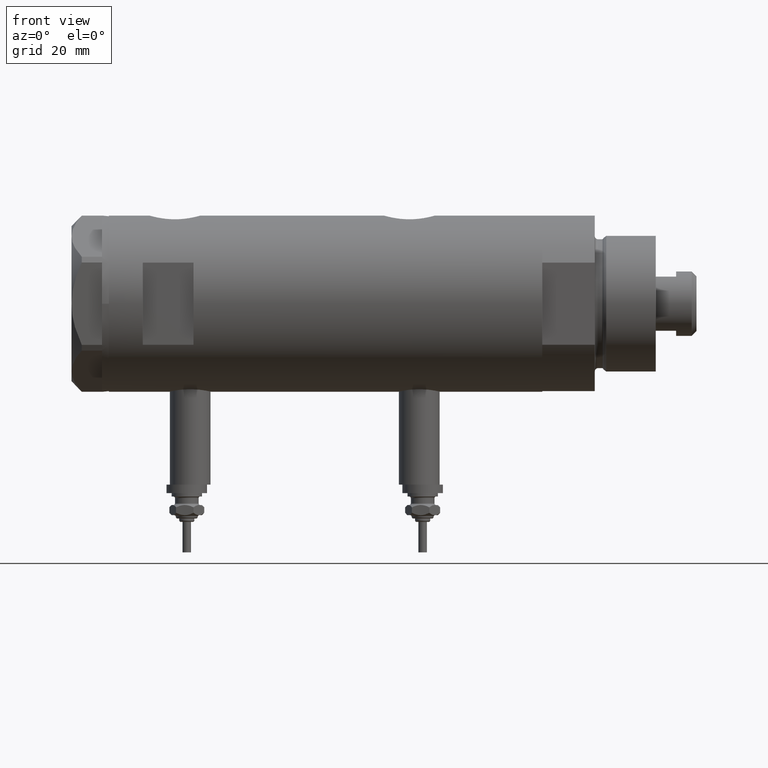
[diagram: clean part render]
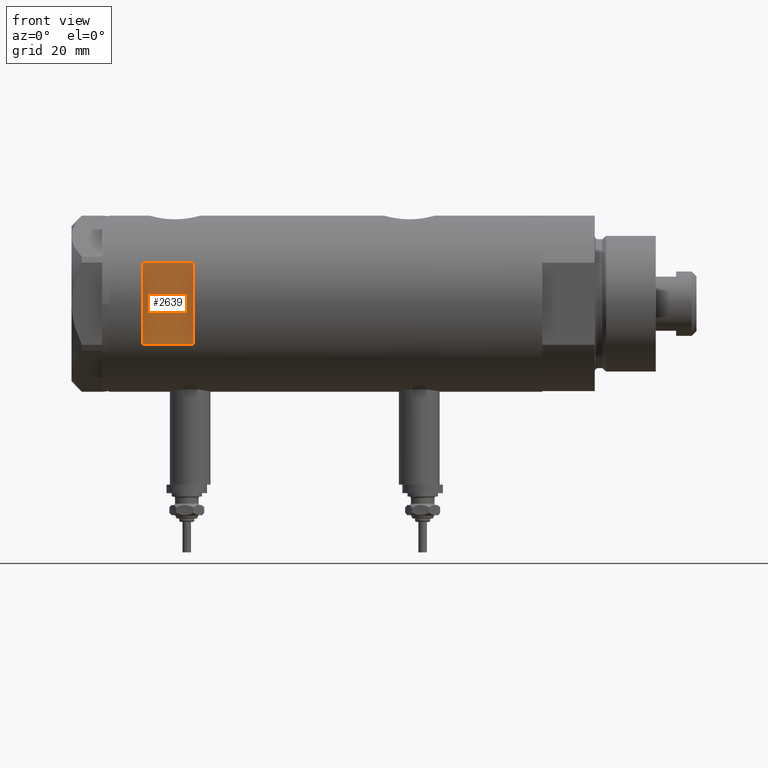
[diagram: same view with one face highlighted and labeled with its STEP entity id]
A machine part, front view. The second image highlights one B-rep face of the part: STEP entity #2639.
In plain terms, the highlighted planar face has unit normal (-0, 1, 0).
Its self-contained STEP definition (entity closure, byte-faithful):
#139 = ORIENTED_EDGE ( 'NONE', *, *, #4231, .T. ) ;
#212 = EDGE_CURVE ( 'NONE', #1428, #3720, #6191, .T. ) ;
#248 = VECTOR ( 'NONE', #1802, 1000.000000000000000 ) ;
#519 = FACE_OUTER_BOUND ( 'NONE', #6210, .T. ) ;
#1258 = AXIS2_PLACEMENT_3D ( 'NONE', #5287, #1455, #4786 ) ;
#1428 = VERTEX_POINT ( 'NONE', #3845 ) ;
#1437 = VERTEX_POINT ( 'NONE', #4390 ) ;
#1455 = DIRECTION ( 'NONE',  ( 0.000000000000000000, 1.000000000000000000, 0.000000000000000000 ) ) ;
#1717 = CARTESIAN_POINT ( 'NONE',  ( -26.00000000000000355, -23.00000000000000355, 53.94999999999999574 ) ) ;
#1776 = VECTOR ( 'NONE', #4671, 1000.000000000000000 ) ;
#1802 = DIRECTION ( 'NONE',  ( 1.000000000000000000, -0.000000000000000000, -0.000000000000000000 ) ) ;
#1940 = ORIENTED_EDGE ( 'NONE', *, *, #5221, .T. ) ;
#2221 = CARTESIAN_POINT ( 'NONE',  ( 12.12435565298214080, -23.00000000000000355, 38.94999999999999574 ) ) ;
#2264 = LINE ( 'NONE', #4176, #248 ) ;
#2347 = ORIENTED_EDGE ( 'NONE', *, *, #5971, .T. ) ;
#2464 = PLANE ( 'NONE',  #1258 ) ;
#2639 = ADVANCED_FACE ( 'NONE', ( #519 ), #2464, .F. ) ;
#2699 = ORIENTED_EDGE ( 'NONE', *, *, #212, .F. ) ;
#3141 = DIRECTION ( 'NONE',  ( 1.000000000000000000, -0.000000000000000000, -0.000000000000000000 ) ) ;
#3255 = CARTESIAN_POINT ( 'NONE',  ( -12.12435565298214080, -23.00000000000000355, -63.95000000000000995 ) ) ;
#3291 = VECTOR ( 'NONE', #4924, 1000.000000000000000 ) ;
#3720 = VERTEX_POINT ( 'NONE', #5646 ) ;
#3845 = CARTESIAN_POINT ( 'NONE',  ( -12.12435565298214080, -23.00000000000000355, 53.94999999999999574 ) ) ;
#3904 = CARTESIAN_POINT ( 'NONE',  ( 12.12435565298214080, -23.00000000000000355, -63.95000000000000995 ) ) ;
#4176 = CARTESIAN_POINT ( 'NONE',  ( -26.00000000000000355, -23.00000000000000355, 38.94999999999999574 ) ) ;
#4231 = EDGE_CURVE ( 'NONE', #5036, #3720, #5368, .T. ) ;
#4390 = CARTESIAN_POINT ( 'NONE',  ( -12.12435565298214080, -23.00000000000000355, 38.94999999999999574 ) ) ;
#4671 = DIRECTION ( 'NONE',  ( -0.000000000000000000, -0.000000000000000000, -1.000000000000000000 ) ) ;
#4786 = DIRECTION ( 'NONE',  ( 0.000000000000000000, -0.000000000000000000, 1.000000000000000000 ) ) ;
#4924 = DIRECTION ( 'NONE',  ( 0.000000000000000000, 0.000000000000000000, 1.000000000000000000 ) ) ;
#5036 = VERTEX_POINT ( 'NONE', #2221 ) ;
#5221 = EDGE_CURVE ( 'NONE', #1428, #1437, #5690, .T. ) ;
#5287 = CARTESIAN_POINT ( 'NONE',  ( -26.00000000000000355, -23.00000000000000355, 53.94999999999999574 ) ) ;
#5368 = LINE ( 'NONE', #3904, #3291 ) ;
#5646 = CARTESIAN_POINT ( 'NONE',  ( 12.12435565298214080, -23.00000000000000355, 53.94999999999999574 ) ) ;
#5690 = LINE ( 'NONE', #3255, #1776 ) ;
#5971 = EDGE_CURVE ( 'NONE', #1437, #5036, #2264, .T. ) ;
#6191 = LINE ( 'NONE', #1717, #6217 ) ;
#6210 = EDGE_LOOP ( 'NONE', ( #1940, #2347, #139, #2699 ) ) ;
#6217 = VECTOR ( 'NONE', #3141, 1000.000000000000000 ) ;